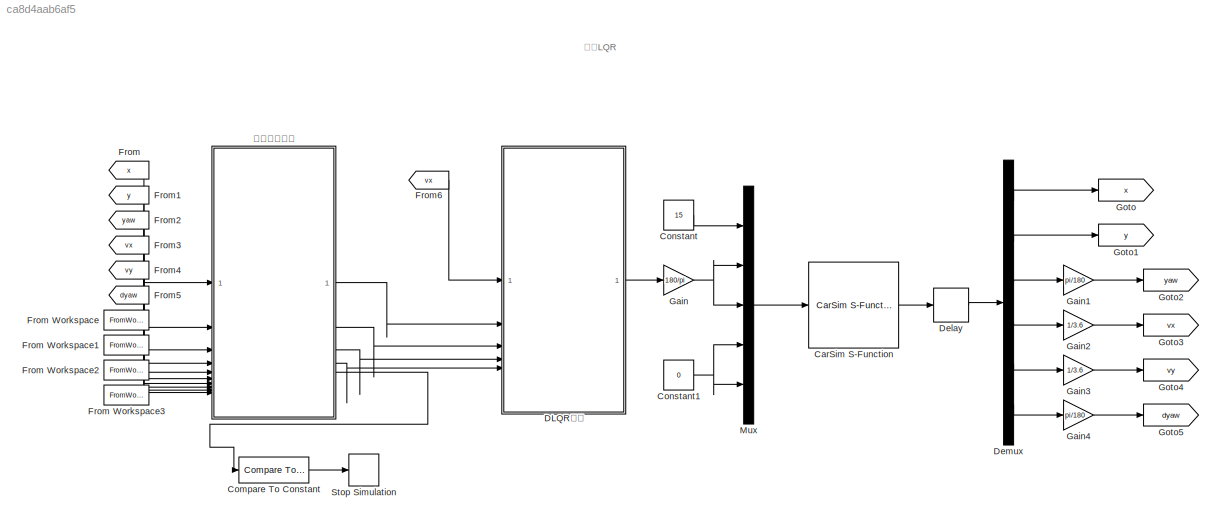
MODEL slx_ca8d4aab6af5
KIND model
CONFIG AbsTol = auto
CONFIG EnableMultiTasking = off
CONFIG FixedStep = auto
CONFIG MaxStep = auto
CONFIG MinStep = auto
CONFIG RelTol = 1e-3
CONFIG SampleTimeConstraint = Unconstrained
CONFIG SolverName = VariableStepAuto
CONFIG StartTime = 0.0
CONFIG StopTime = 50
BLOCK [Reference] CarSim S-Function  REF=Solver_SF/CarSim S-Function
  Priority = 1
  SourceBlock = Solver_SF/CarSim S-Function
  SourceProductName = CarSim S-Function
  SourceType = Vehicle math model library
BLOCK [Reference] Compare To Constant  REF=simulink/Logic and Bit
Operations/Compare
To Constant
  SourceBlock = simulink/Logic and Bit\nOperations/Compare\nTo Constant
  SourceType = Compare To Constant
BLOCK [Constant] Constant
  Value = 15
BLOCK [Constant] Constant1
  Value = 0
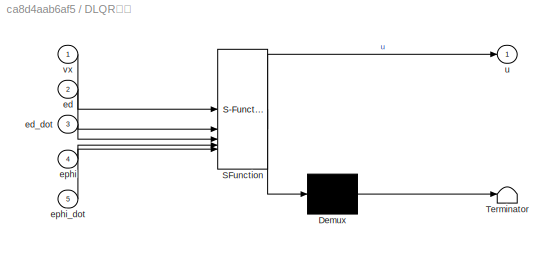
BLOCK [SubSystem] DLQR计算
  ErrorFcn = Stateflow.Translate.translate
  LibrarySourceBlock = simulink/User-Defined\nFunctions/MATLAB Function
  PermitHierarchicalResolution = ExplicitOnly
  SFBlockType = MATLAB Function
  TreatAsAtomicUnit = on
BLOCK [Demux] DLQR计算/ Demux 
  Outputs = 1
BLOCK [S-Function] DLQR计算/ SFunction 
  EnableBusSupport = off
  FunctionName = sf_sfun
  PortCounts = [5 2]
  SFcnIsStateOwnerBlock = off
  SFunctionDeploymentMode = off
  Tag = Stateflow S-Function 1
BLOCK [Terminator] DLQR计算/ Terminator 
BLOCK [Inport] DLQR计算/ed
  Port = 2
BLOCK [Inport] DLQR计算/ed_dot
  Port = 3
BLOCK [Inport] DLQR计算/ephi
  Port = 4
BLOCK [Inport] DLQR计算/ephi_dot
  Port = 5
BLOCK [Outport] DLQR计算/u
BLOCK [Inport] DLQR计算/vx
BLOCK [Delay] Delay
  DelayLength = 1
  InputPortMap = u0
BLOCK [Demux] Demux
  Outputs = 6
BLOCK [From] From
  GotoTag = x
BLOCK [FromWorkspace] From Workspace
  VariableName = cx
BLOCK [FromWorkspace] From Workspace1
  VariableName = cy
BLOCK [FromWorkspace] From Workspace2
  VariableName = r_yaw
BLOCK [FromWorkspace] From Workspace3
  VariableName = r_k
BLOCK [From] From1
  GotoTag = y
BLOCK [From] From2
  GotoTag = yaw
BLOCK [From] From3
  GotoTag = vx
BLOCK [From] From4
  GotoTag = vy
BLOCK [From] From5
  GotoTag = dyaw
BLOCK [From] From6
  GotoTag = vx
BLOCK [Gain] Gain
  Gain = 180/pi
BLOCK [Gain] Gain1
  Gain = pi/180
BLOCK [Gain] Gain2
  Gain = 1/3.6
BLOCK [Gain] Gain3
  Gain = 1/3.6
BLOCK [Gain] Gain4
  Gain = pi/180
BLOCK [Goto] Goto
  GotoTag = x
BLOCK [Goto] Goto1
  GotoTag = y
BLOCK [Goto] Goto2
  GotoTag = yaw
BLOCK [Goto] Goto3
  GotoTag = vx
BLOCK [Goto] Goto4
  GotoTag = vy
BLOCK [Goto] Goto5
  GotoTag = dyaw
BLOCK [Mux] Mux
  DisplayOption = bar
  Inputs = 5
BLOCK [Stop] Stop Simulation
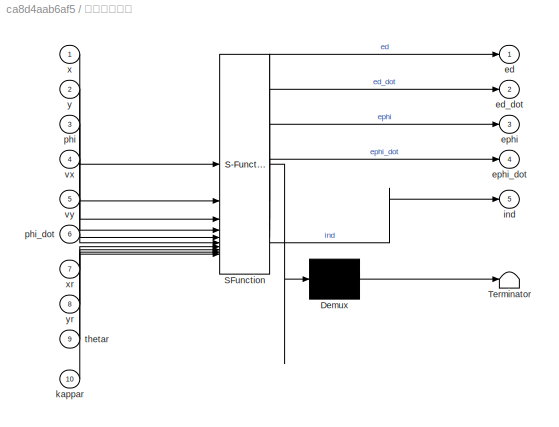
BLOCK [SubSystem] 横向误差计算
  ErrorFcn = Stateflow.Translate.translate
  LibrarySourceBlock = simulink/User-Defined\nFunctions/MATLAB Function
  PermitHierarchicalResolution = ExplicitOnly
  SFBlockType = MATLAB Function
  TreatAsAtomicUnit = on
BLOCK [Demux] 横向误差计算/ Demux 
  Outputs = 1
BLOCK [S-Function] 横向误差计算/ SFunction 
  EnableBusSupport = off
  FunctionName = sf_sfun
  PortCounts = [10 6]
  SFcnIsStateOwnerBlock = off
  SFunctionDeploymentMode = off
  Tag = Stateflow S-Function 2
BLOCK [Terminator] 横向误差计算/ Terminator 
BLOCK [Outport] 横向误差计算/ed
BLOCK [Outport] 横向误差计算/ed_dot
  Port = 2
BLOCK [Outport] 横向误差计算/ephi
  Port = 3
BLOCK [Outport] 横向误差计算/ephi_dot
  Port = 4
BLOCK [Outport] 横向误差计算/ind
  Port = 5
BLOCK [Inport] 横向误差计算/kappar
  Port = 10
BLOCK [Inport] 横向误差计算/phi
  Port = 3
BLOCK [Inport] 横向误差计算/phi_dot
  Port = 6
BLOCK [Inport] 横向误差计算/thetar
  Port = 9
BLOCK [Inport] 横向误差计算/vx
  Port = 4
BLOCK [Inport] 横向误差计算/vy
  Port = 5
BLOCK [Inport] 横向误差计算/x
BLOCK [Inport] 横向误差计算/xr
  Port = 7
BLOCK [Inport] 横向误差计算/y
  Port = 2
BLOCK [Inport] 横向误差计算/yr
  Port = 8
ANNOTATION (root): 离散LQR
LINE CarSim S-Function:1 -> Delay:1
LINE Compare To Constant:1 -> Stop Simulation:1
NET Constant1:1 -> Mux:4, Mux:5
LINE Constant:1 -> Mux:1
LINE DLQR计算:1 -> Gain:1
LINE Delay:1 -> Demux:1
LINE Demux:1 -> Goto:1
LINE Demux:2 -> Goto1:1
LINE Demux:3 -> Gain1:1
LINE Demux:4 -> Gain2:1
LINE Demux:5 -> Gain3:1
LINE Demux:6 -> Gain4:1
LINE From Workspace1:1 -> 横向误差计算:8
LINE From Workspace2:1 -> 横向误差计算:9
LINE From Workspace3:1 -> 横向误差计算:10
LINE From Workspace:1 -> 横向误差计算:7
LINE From1:1 -> 横向误差计算:2
LINE From2:1 -> 横向误差计算:3
LINE From3:1 -> 横向误差计算:4
LINE From4:1 -> 横向误差计算:5
LINE From5:1 -> 横向误差计算:6
LINE From6:1 -> DLQR计算:1
LINE From:1 -> 横向误差计算:1
LINE Gain1:1 -> Goto2:1
LINE Gain2:1 -> Goto3:1
LINE Gain3:1 -> Goto4:1
LINE Gain4:1 -> Goto5:1
NET Gain:1 -> Mux:2, Mux:3
LINE Mux:1 -> CarSim S-Function:1
LINE 横向误差计算:1 -> DLQR计算:2
LINE 横向误差计算:2 -> DLQR计算:3
LINE 横向误差计算:3 -> DLQR计算:4
LINE 横向误差计算:4 -> DLQR计算:5
LINE 横向误差计算:5 -> Compare To Constant:1
note: NET lines group one-source signal fan-out (src -> all destinations, sorted); 1:1 wires keep LINE
CHART DLQR计算 states=1 transitions=1
  STATE_LABEL 'eML_blk_kernel()'
  STATE_LABEL 'SCRIPT:\n% 首先在参考轨迹上搜索离当前车辆位置最近的点\nfunction u   = DLQR_calculate(vx,ed,ed_dot,ephi, ephi_dot)\n    e_X=[ed;ed_dot;ephi; ephi_dot];\n    \n    % 车辆参数\n    cf = -79127;\n    cr = -79127;\n    m = 1235.9;\n    Iz=1343.1;\n    lf=1.3;\n    lr=2.6-1.3;\n    % 离散化采样时\n    T=0.05; \n    \n    v=vx+0.05;    % 分母不能为0，故加上很小数\n    % 离散化之前的状态空间方程的矩阵系数 A,B\n     a1=[0,          1,                  0,                  0;\n       ...<+1034ch>'
CHART 横向误差计算 states=1 transitions=1
  STATE_LABEL 'eML_blk_kernel()'
  STATE_LABEL 'SCRIPT:\nfunction [ed,ed_dot,ephi,ephi_dot,ind] = err_calculate(x,y,phi, vx,vy,phi_dot,xr,yr,thetar,kappar)\n    %寻找匹配点\n    n=length(xr);\n    d_min=(x-xr(1))^2+(y-yr(1))^2;\n    min=1;\n    for i=1:n\n        d=(x-xr(i))^2+(y-yr(i))^2;\n        if d<d_min\n            d_min=d;\n            min=i;\n        end\n    end\n    ind=min;\n\n    %计算状态方程中的状态向量\n    tor=[cos(thetar(ind));sin(thetar(ind))];\n    nor=[-sin...<+534ch>'
CHART  states=0 transitions=0
CHART  states=0 transitions=0
